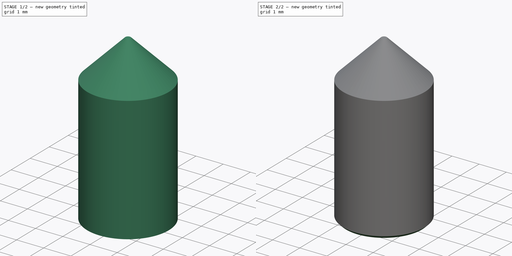
[diagram: build sequence overview — one tinted view per stage of 2, left to right]
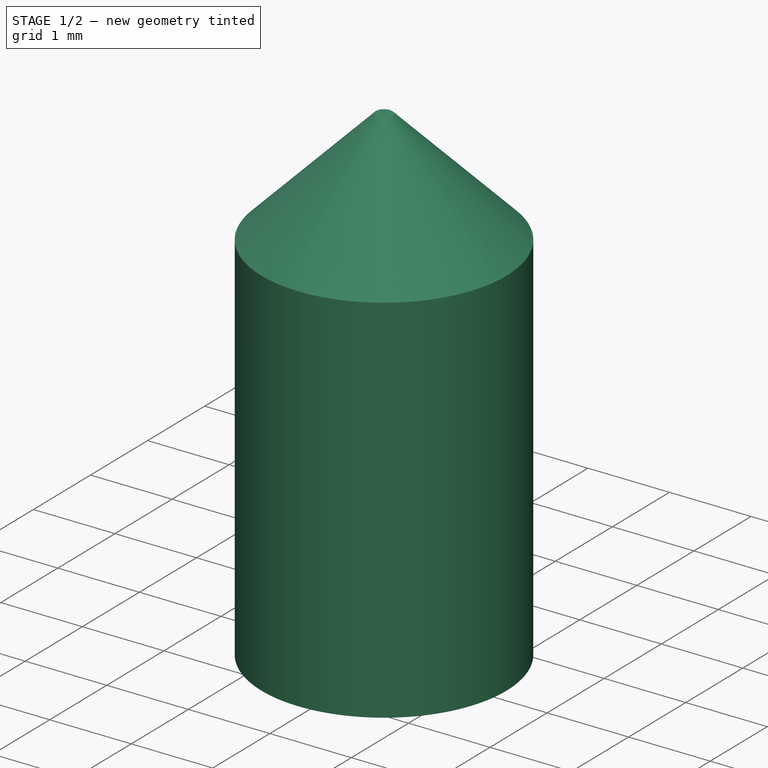
[diagram: stage 1 of 2 — iso view after this stage's code; geometry added in this stage tinted green]
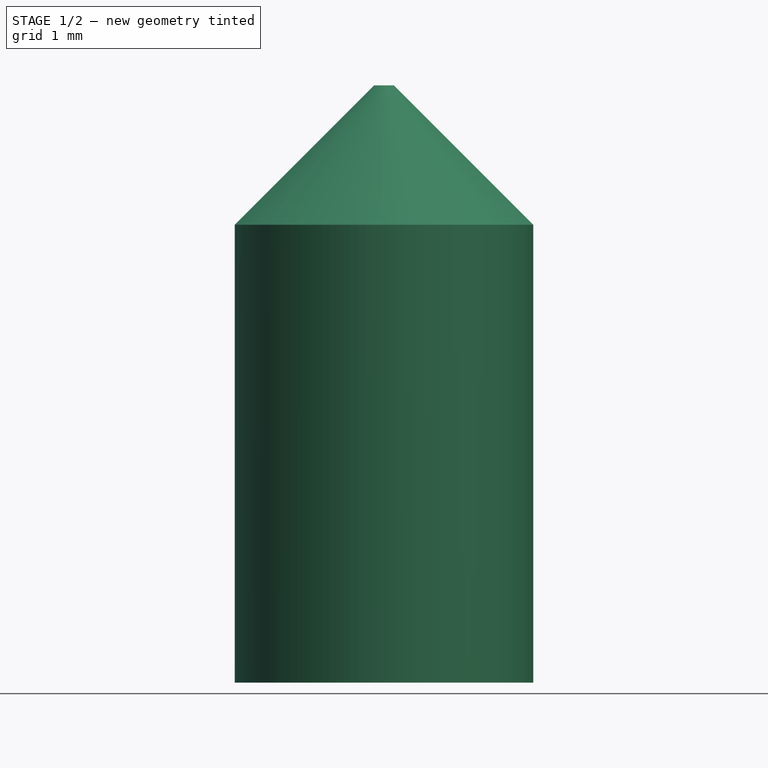
[diagram: stage 1 of 2 — front view after this stage's code; geometry added in this stage tinted green]
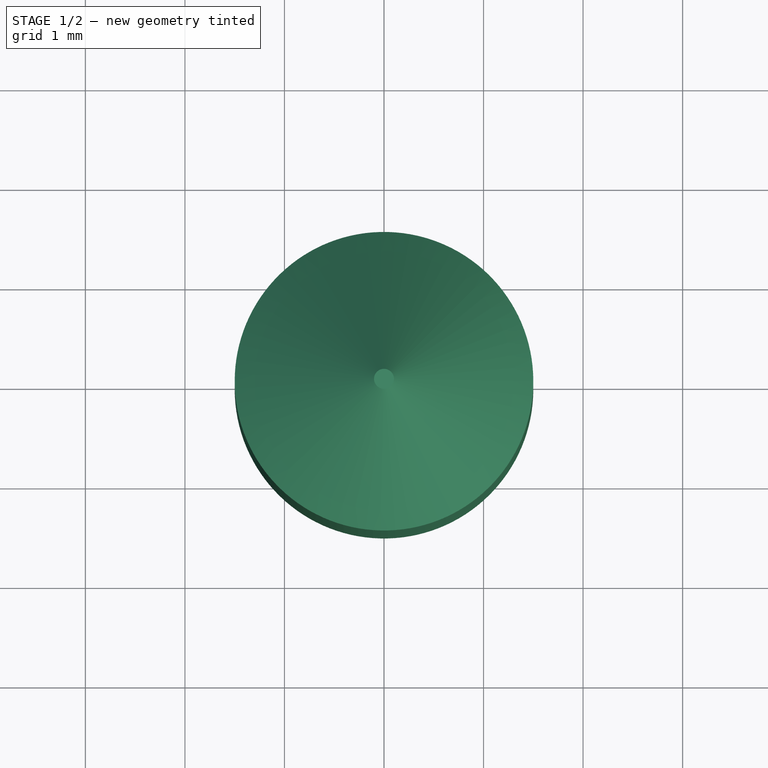
[diagram: stage 1 of 2 — top view after this stage's code; geometry added in this stage tinted green]
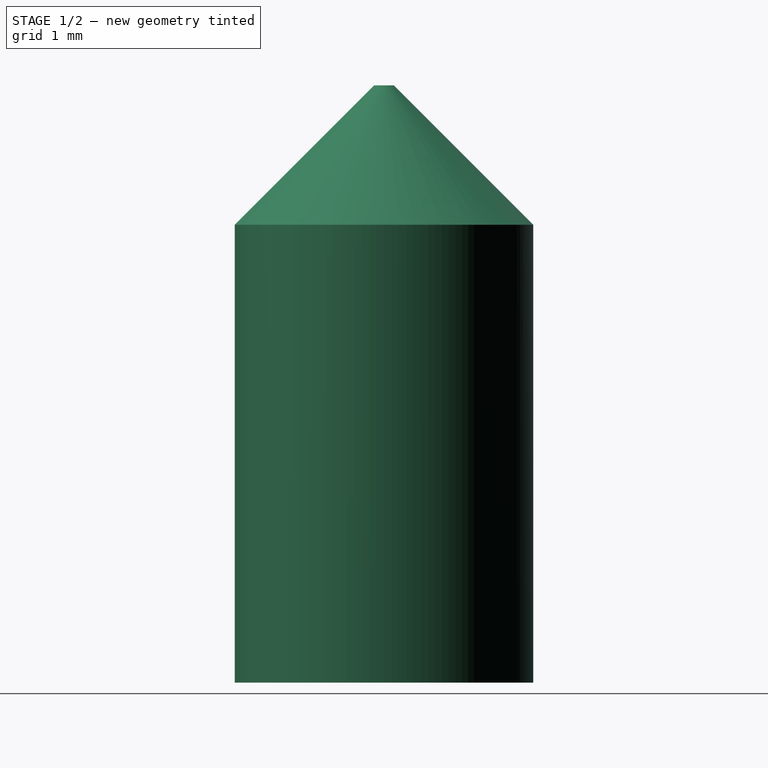
[diagram: stage 1 of 2 — right view after this stage's code; geometry added in this stage tinted green]
FCSTD DOCUMENT  (FreeCAD 0.20R29177 (Git))
Label: xt60_insert_vis
License: All rights reserved
LicenseURL: http://en.wikipedia.org/wiki/All_rights_reserved
objects: App::Part×3, Sketcher::SketchObject×2, PartDesign::Chamfer×2, Part::Feature×1, PartDesign::Pad×1, PartDesign::Pocket×1, PartDesign::Body×1, App::Link×1
note: 12 computed .brp shape members not serialized (recipe doc carries the construction recipe); baked Part::Feature solids carry a one-line shape summary decoded from their .brp
EXTERNAL_REF file=../elementsCommun/xt_001.FCStd obj=Part

FEATURE [Part::Feature] Solid002  label="RUTHEX_M3x5_7"
  Placement = pos=(-11.5,0,-0.2) rot=(0,0,1;0rad)
  shape: bbox 4.583 x 5.705 x 4.583 mm, 200 faces (baked)
FEATURE [App::Part] Part003  label="ZSB_RUTHEX_M3_5.7_001"
  Group = -> [Solid002]
  Origin = -> Origin006
  Placement = pos=(-15.5,-3.9,18.8) rot=(0,0,1;3.14159rad)
FEATURE [Sketcher::SketchObject] Sketch025
  FullyConstrained = false
  MapMode = 5
  Support = -> [XY_Plane008]
  sketch-geometry (1):
    g0: Circle CenterX=0 CenterY=0 CenterZ=0 NormalX=0 NormalY=0 NormalZ=1 AngleXU=0 Radius=1.5
  constraints (2):
    c: Coincident(g0,g-1)
    c: Diameter(g0) = 3
FEATURE [Sketcher::SketchObject] Sketch026
  FullyConstrained = false
  MapMode = 5
  Support = -> [XY_Plane008]
  sketch-geometry (7):
    g0: LineSegment StartX=0.433013 StartY=-0.75 StartZ=0 EndX=0.866025 EndY=1.25568e-11 EndZ=0
    g1: LineSegment StartX=0.866025 StartY=1.25568e-11 StartZ=0 EndX=0.433013 EndY=0.75 EndZ=0
    g2: LineSegment StartX=0.433013 StartY=0.75 StartZ=0 EndX=-0.433013 EndY=0.75 EndZ=0
    g3: LineSegment StartX=-0.433013 StartY=0.75 StartZ=0 EndX=-0.866025 EndY=2.91366e-11 EndZ=0
    g4: LineSegment StartX=-0.866025 StartY=2.91366e-11 StartZ=0 EndX=-0.433013 EndY=-0.75 EndZ=0
    g5: LineSegment StartX=-0.433013 StartY=-0.75 StartZ=0 EndX=0.433013 EndY=-0.75 EndZ=0
    g6: Circle CenterX=0 CenterY=0 CenterZ=0 NormalX=0 NormalY=0 NormalZ=1 AngleXU=0 Radius=0.866025
  constraints (16):
    c: Coincident(g0,g1)
    c: Coincident(g1,g2)
    c: Coincident(g2,g3)
    c: Coincident(g3,g4)
    c: Coincident(g4,g5)
    c: Coincident(g5,g0)
    c: Equal(g0, g1-g5) x5
    c: PointOnObject(g0,g6)
    c: PointOnObject(g1,g6)
    c: PointOnObject(g2,g6)
    c: PointOnObject(g3,g6)
    c: PointOnObject(g4,g6)
    c: PointOnObject(g5,g6)
    c: Coincident(g6,g-1)
    c: Horizontal(g2)
    c: DistanceY(g0,g1) = 1.5
FEATURE [PartDesign::Pad] Pad012
  AllowMultiFace = false
  Direction = (1,1,1)
  Length = 6
  Length2 = 100
  Profile = -> Sketch025
  Type = 0
FEATURE [PartDesign::Chamfer] Chamfer
  Angle = 45
  Base = -> Pad012 [Edge3]
  BaseFeature = -> Pad012
  ChamferType = 0
  FlipDirection = false
  Size = 1.4
  Size2 = 1
  SupportTransform = false
  UseAllEdges = false
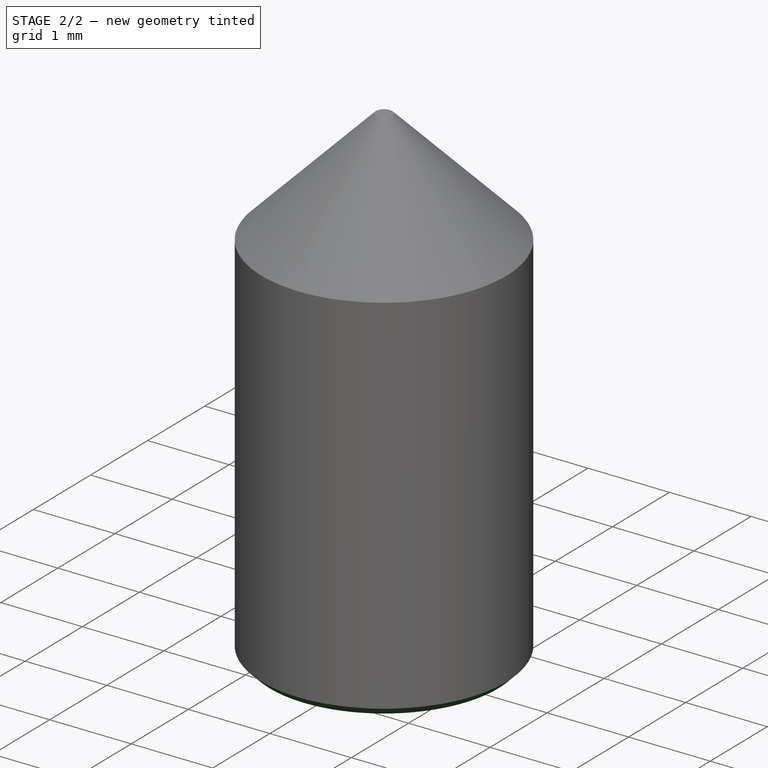
[diagram: stage 2 of 2 — iso view after this stage's code; geometry added in this stage tinted green]
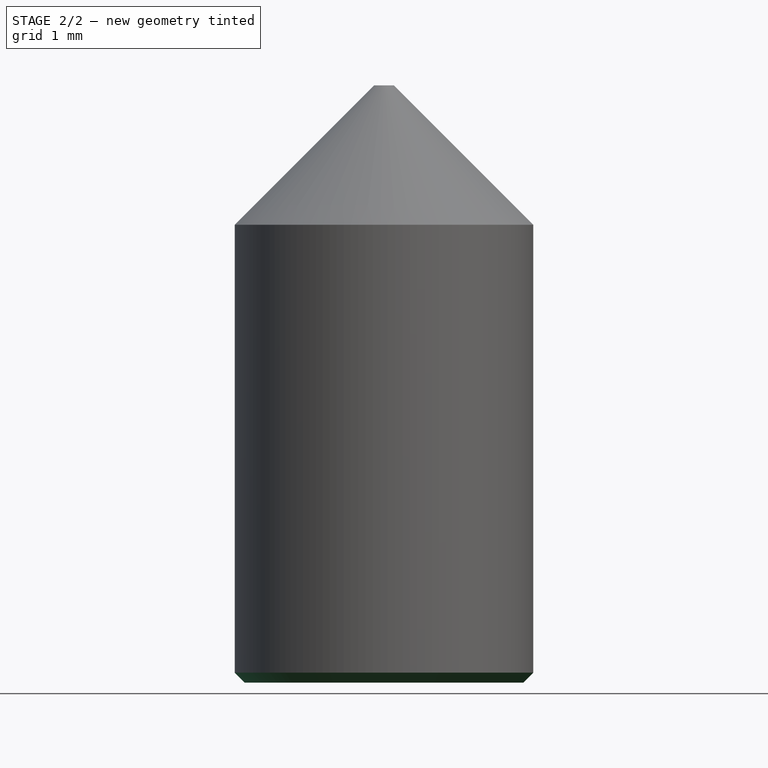
[diagram: stage 2 of 2 — front view after this stage's code; geometry added in this stage tinted green]
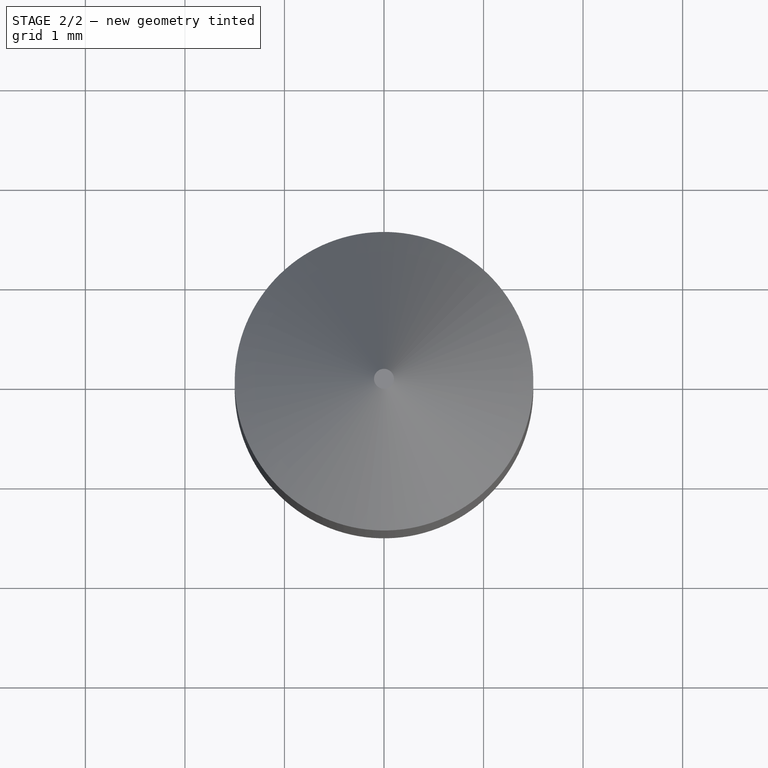
[diagram: stage 2 of 2 — top view after this stage's code; geometry added in this stage tinted green]
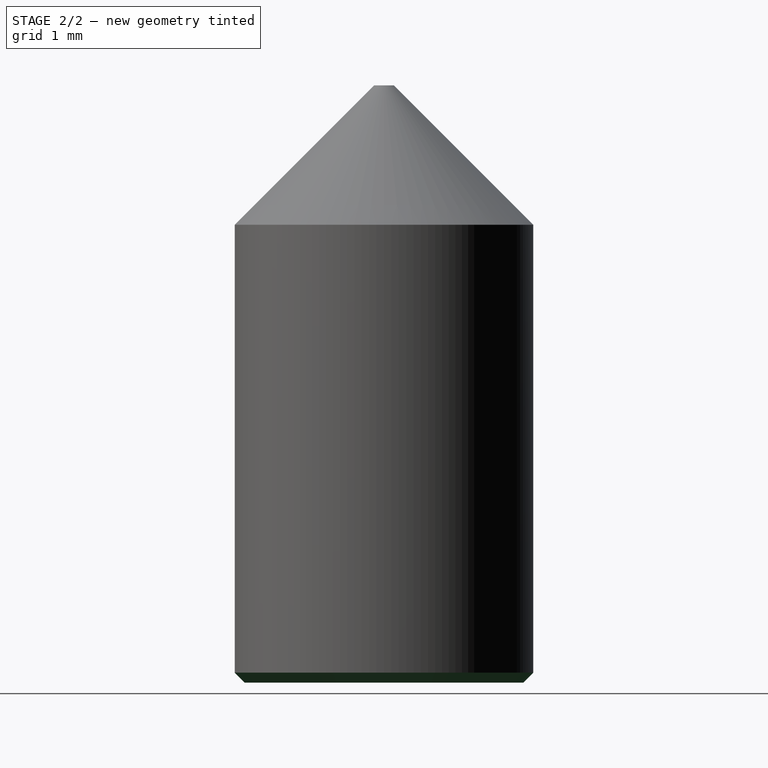
[diagram: stage 2 of 2 — right view after this stage's code; geometry added in this stage tinted green]
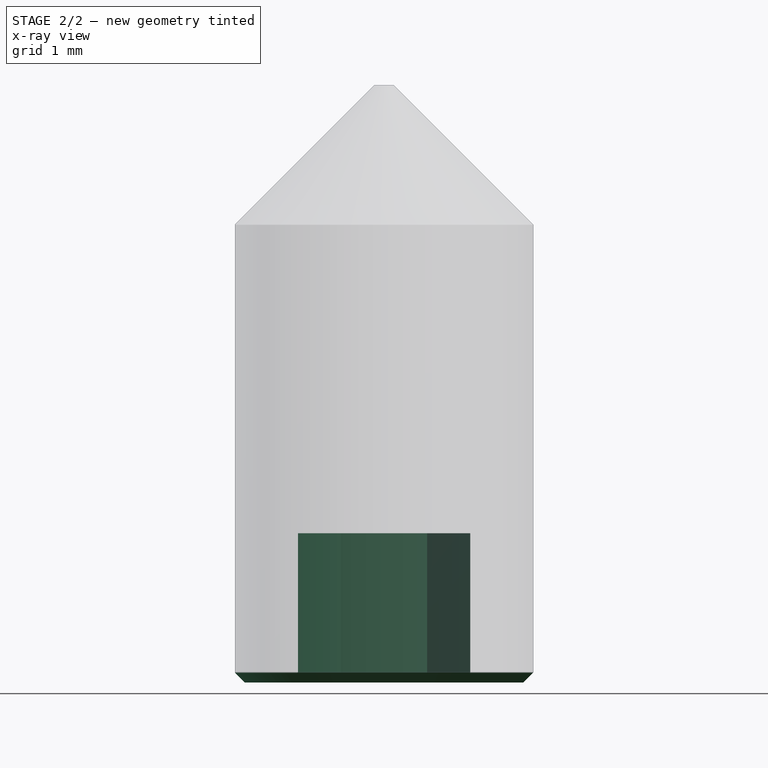
[diagram: stage 2 of 2 — x-ray composite at the front view; earlier geometry ghosted, this stage's added geometry solid]
FEATURE [PartDesign::Pocket] Pocket013
  AllowMultiFace = false
  BaseFeature = -> Chamfer
  Direction = (1,1,1)
  Length = 1.5
  Length2 = 100
  Profile = -> Sketch026
  Reversed = true
  Type = 0
FEATURE [PartDesign::Chamfer] Chamfer001
  Angle = 45
  Base = -> Pocket013 [Edge3]
  BaseFeature = -> Pocket013
  ChamferType = 0
  FlipDirection = false
  Size = 0.1
  Size2 = 1
  SupportTransform = false
  UseAllEdges = false
FEATURE [PartDesign::Body] Body005  label="bodyVisPointeauM3x10_001"
  Group = -> [Sketch025,Pad012,Chamfer,Sketch026,Pocket013,Chamfer001]
  Origin = -> Origin013
  Tip = -> Chamfer001
FEATURE [App::Part] Part007  label="partVisPointeauM3x10_001"
  Group = -> [Body005]
  Origin = -> Origin012
  Placement = pos=(-4,-4.4,18.6) rot=(1,0,0;1.5708rad)
FEATURE [App::Link] Link  label="xt60Male001"
  LinkPlacement = pos=(-7.60001,-13.95,10.25) rot=(0,0,1;1.5708rad)
  LinkedObject = -> <external ../elementsCommun/xt_001.FCStd>#Part
  Placement = pos=(-7.60001,-13.95,10.25) rot=(0,0,1;1.5708rad)
FEATURE [App::Part] Part010  label="xtVisInsertFix"
  Group = -> [Part003,Part007,Link]
  Origin = -> Origin021
  Placement = pos=(0,13.942,-10.258) rot=(0,0,1;0rad)

RESOLVED EXTERNAL PARTS (link-assembly join: the EXTERNAL_REF files above that resolve inside this repo's crawl, each included once):
---- part ../elementsCommun/xt_001.FCStd = doc fcstd_f280d5d832ee ----
FCSTD DOCUMENT  (FreeCAD 0.20R29177 (Git))
Label: xt_001
License: Public Domain
LicenseURL: http://en.wikipedia.org/wiki/Public_domain
objects: Part::Feature×3, Spreadsheet::Sheet×1, Part::Compound2×1, Sketcher::SketchObject×1, PartDesign::Body×1, App::Part×1
note: 5 computed .brp shape members not serialized (recipe doc carries the construction recipe); baked Part::Feature solids carry a one-line shape summary decoded from their .brp

FEATURE [Spreadsheet::Sheet] Spreadsheet  label="xtSp"
  cells = A2=base; B2(base)=8.300000000000001; A3=haut; B3(haut)=13.25; A4=toitHaut; B4(toitHaut)=2.5; A5=fetierLarg; B5(fetierLarg)=3
FEATURE [Part::Feature] Solid
  shape: bbox 19.85 x 5.084 x 5.084 mm, 17 faces (baked)
FEATURE [Part::Feature] Solid001
  shape: bbox 19.85 x 5.084 x 5.084 mm, 17 faces (baked)
FEATURE [Part::Feature] Solid002
  shape: bbox 15.7 x 7.5 x 16.55 mm, 359 faces (baked)
FEATURE [Part::Compound2] Compound  label="XT60MaleConnector"
  Links = -> [Solid,Solid001,Solid002]
  Placement = pos=(6.2e-15,-8,6.5) rot=(-0.707107,-0.707107,0;3.14159rad)
FEATURE [Sketcher::SketchObject] Sketch
  FullyConstrained = true
  MapMode = 5
  Placement = pos=(0,0,0) rot=(1,0,0;1.5708rad)
  Support = -> [XZ_Plane001]
  expr: Constraints[13] = <<xtSp>>.base
  expr: Constraints[14] = <<xtSp>>.haut
  expr: Constraints[16] = <<xtSp>>.fetierLarg
  expr: Constraints[17] = <<xtSp>>.toitHaut
  sketch-geometry (7):
    g0: LineSegment StartX=-4.15 StartY=0 StartZ=0 EndX=-4.15 EndY=13.25 EndZ=0
    g1: LineSegment StartX=-4.15 StartY=13.25 StartZ=0 EndX=-1.5 EndY=15.75 EndZ=0
    g2: LineSegment StartX=-1.5 StartY=15.75 StartZ=0 EndX=1.5 EndY=15.75 EndZ=0
    g3: LineSegment StartX=1.5 StartY=15.75 StartZ=0 EndX=4.15 EndY=13.25 EndZ=0
    g4: LineSegment StartX=4.15 StartY=13.25 StartZ=0 EndX=4.15 EndY=0 EndZ=0
    g5: LineSegment StartX=4.15 StartY=0 StartZ=0 EndX=-4.15 EndY=0 EndZ=0
    g6: LineSegment StartX=-4.15 StartY=13.25 StartZ=0 EndX=4.15 EndY=13.25 EndZ=0
  constraints (18):
    c: PointOnObject(g0,g-1)
    c: Vertical(g0)
    c: Coincident(g0,g1)
    c: Coincident(g1,g2)
    c: Coincident(g2,g3)
    c: Coincident(g3,g4)
    c: Vertical(g4)
    c: Coincident(g4,g5)
    c: Coincident(g5,g0)
    c: Symmetric(g0,g4,g-2)
    c: Coincident(g6,g0)
    c: Coincident(g6,g3)
    c: Horizontal(g6)
    c: DistanceX(g5,g5) = 8.3
    c: DistanceY(g4,g4) = 13.25
    c: Symmetric(g1,g2,g-2)
    c: DistanceX(g2,g2) = 3
    c: DistanceY(g0,g1) = 2.5
FEATURE [PartDesign::Body] Body
  Group = -> [Sketch]
  Origin = -> Origin001
FEATURE [App::Part] Part  label="xt"
  Group = -> [Spreadsheet,Body,Solid002,Solid,Solid001,Compound]
  Origin = -> Origin
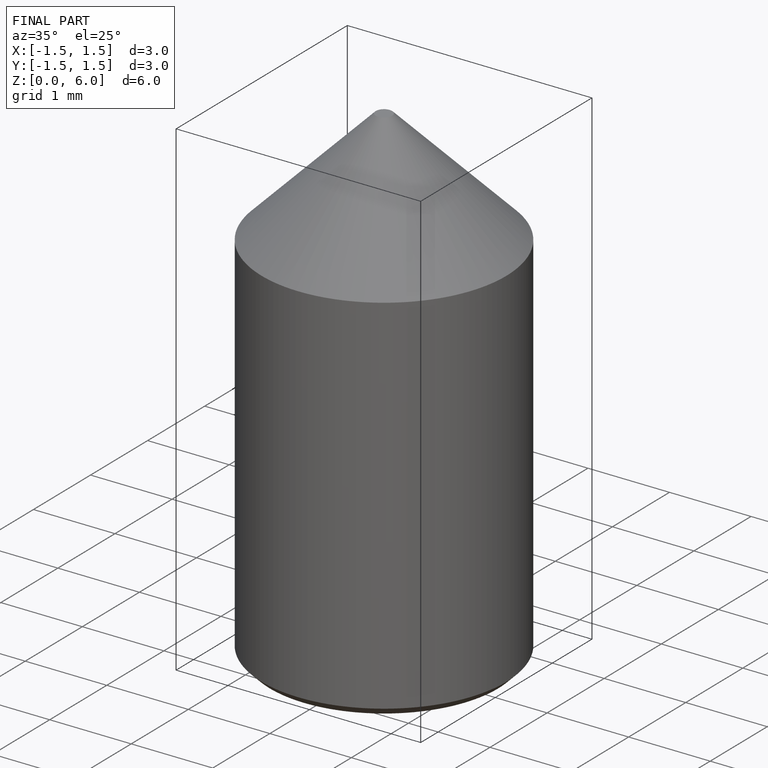
[diagram: finished part — iso view with bounding-box wireframe]
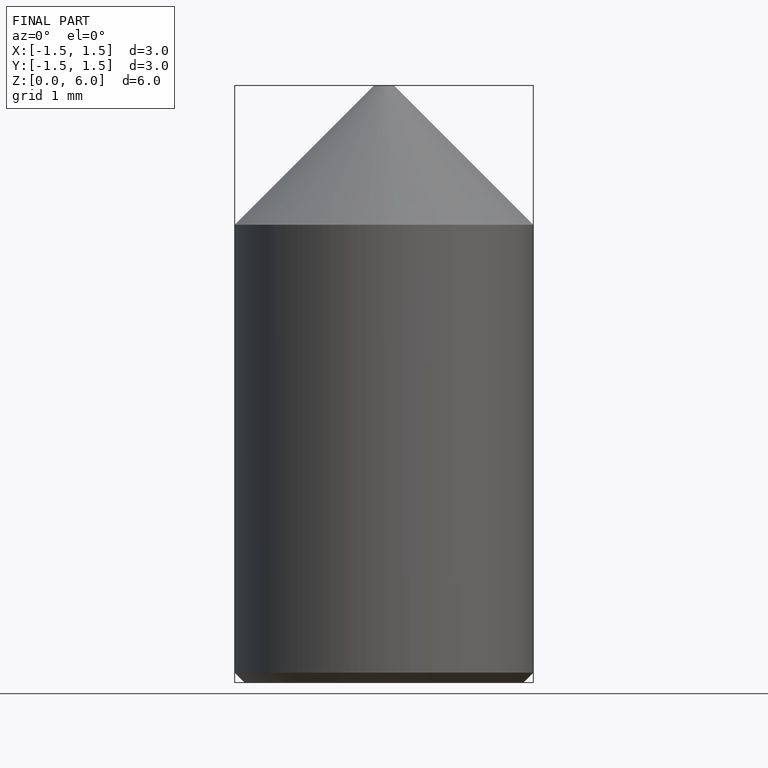
[diagram: finished part — front view with bounding-box wireframe]
